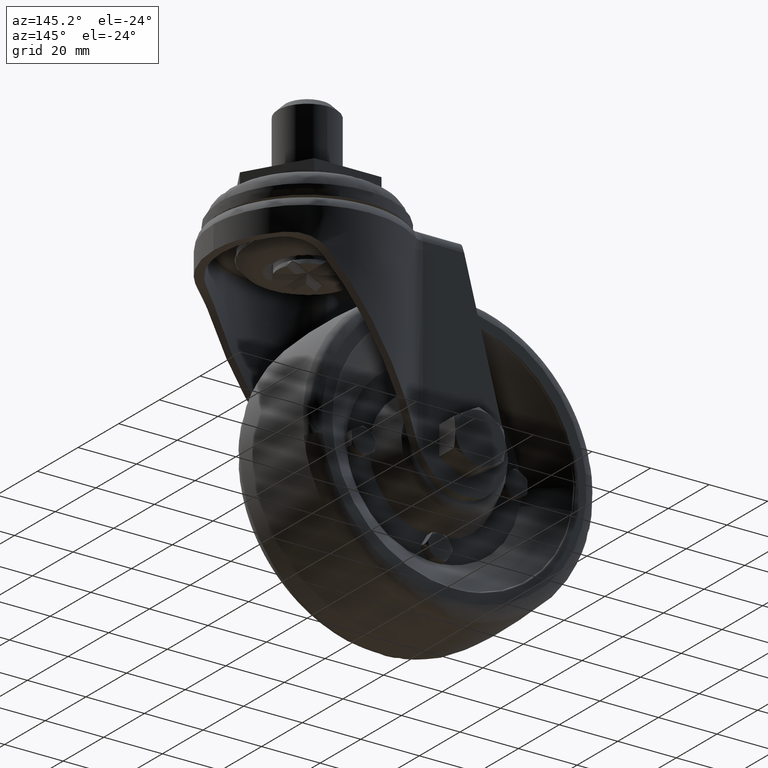
[diagram: clean part render]
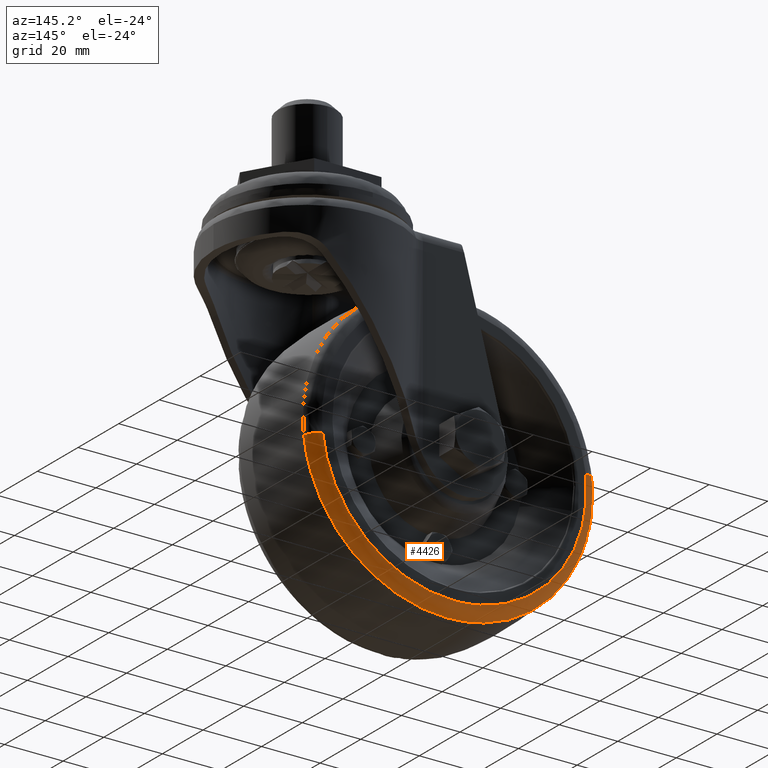
[diagram: same view with one face highlighted and labeled with its STEP entity id]
A machine part, auxiliary view. The second image highlights one B-rep face of the part: STEP entity #4426.
In plain terms, the highlighted face is a freeform B-spline surface patch.
Its self-contained STEP definition (entity closure, byte-faithful):
#4194=CARTESIAN_POINT('',(-81.938464137632096,19.0,-68.395798235338859));
#4195=VERTEX_POINT('',#4194);
#4196=CARTESIAN_POINT('',(-37.0,19.0,-118.727408000000200));
#4197=VERTEX_POINT('',#4196);
#4198=CARTESIAN_POINT('',(-81.938464137632096,18.999999999999993,-68.395798235338859));
#4199=CARTESIAN_POINT('',(-82.227408003267257,18.999999999999993,-70.939720702783248));
#4200=CARTESIAN_POINT('',(-82.227408003172400,19.0,-73.499999999639712));
#4201=CARTESIAN_POINT('',(-82.227408001496514,18.999999999999993,-118.727407999830260));
#4202=CARTESIAN_POINT('',(-37.0,19.0,-118.727408000000200));
#4210=(BOUNDED_CURVE()B_SPLINE_CURVE(2,(#4198,#4199,#4200,#4201,#4202),.UNSPECIFIED.,.F.,.U.)B_SPLINE_CURVE_WITH_KNOTS((3,2,3),(0.730444236555883,0.750000000000000,1.0),.UNSPECIFIED.)CURVE()GEOMETRIC_REPRESENTATION_ITEM()RATIONAL_B_SPLINE_CURVE((0.957762333071963,0.977088997993993,1.0,0.707106781186548,1.0))REPRESENTATION_ITEM(''));
#4211=EDGE_CURVE('',#4195,#4197,#4210,.T.);
#4228=CARTESIAN_POINT('',(7.938464137632105,19.0,-78.604201764661127));
#4229=VERTEX_POINT('',#4228);
#4245=CARTESIAN_POINT('',(-37.0,19.0,-118.727408000000200));
#4246=CARTESIAN_POINT('',(3.381189115497222,18.999999999999993,-118.727408000190580));
#4247=CARTESIAN_POINT('',(7.938464137632105,18.999999999999996,-78.604201764661127));
#4255=(BOUNDED_CURVE()B_SPLINE_CURVE(2,(#4245,#4246,#4247),.UNSPECIFIED.,.F.,.U.)B_SPLINE_CURVE_WITH_KNOTS((3,3),(0.0,0.230444236555884),.UNSPECIFIED.)CURVE()GEOMETRIC_REPRESENTATION_ITEM()RATIONAL_B_SPLINE_CURVE((1.0,0.730017783192555,0.957762333071963))REPRESENTATION_ITEM(''));
#4256=EDGE_CURVE('',#4197,#4229,#4255,.T.);
#4296=CARTESIAN_POINT('',(11.891878821661811,15.410934890007050,-79.053238610616631));
#4297=VERTEX_POINT('',#4296);
#4315=CARTESIAN_POINT('',(7.938464137632105,18.999999999999989,-78.604201764661127));
#4316=CARTESIAN_POINT('',(11.523568169063955,18.999999827242949,-79.011405140887931));
#4317=CARTESIAN_POINT('',(11.891878821661809,15.410934890007047,-79.053238610616646));
#4325=(BOUNDED_CURVE()B_SPLINE_CURVE(2,(#4315,#4316,#4317),.UNSPECIFIED.,.F.,.U.)B_SPLINE_CURVE_WITH_KNOTS((3,3),(-1.720680101244302,-0.281880793322584),.UNSPECIFIED.)CURVE()GEOMETRIC_REPRESENTATION_ITEM()RATIONAL_B_SPLINE_CURVE((0.893261805848611,0.662979489235647,0.892443511112229))REPRESENTATION_ITEM(''));
#4326=EDGE_CURVE('',#4229,#4297,#4325,.T.);
#4330=CARTESIAN_POINT('',(-85.891878821662488,15.410934890000370,-67.946761389383298));
#4331=VERTEX_POINT('',#4330);
#4332=CARTESIAN_POINT('',(-81.938464137632096,18.999999999999996,-68.395798235338845));
#4333=CARTESIAN_POINT('',(-85.523568169070003,18.999999827242952,-67.988594859111373));
#4334=CARTESIAN_POINT('',(-85.891878821662488,15.410934890000375,-67.946761389383298));
#4342=(BOUNDED_CURVE()B_SPLINE_CURVE(2,(#4332,#4333,#4334),.UNSPECIFIED.,.F.,.U.)B_SPLINE_CURVE_WITH_KNOTS((3,3),(-1.720680101244303,-0.281880793320782),.UNSPECIFIED.)CURVE()GEOMETRIC_REPRESENTATION_ITEM()RATIONAL_B_SPLINE_CURVE((0.893261805848612,0.662979489235358,0.892443511112804))REPRESENTATION_ITEM(''));
#4343=EDGE_CURVE('',#4195,#4331,#4342,.T.);
#4361=CARTESIAN_POINT('',(-81.534444308736354,18.991289010974878,-67.176570538242018));
#4362=CARTESIAN_POINT('',(-81.604963410388535,18.991289010974871,-67.797435517107601));
#4363=CARTESIAN_POINT('',(-86.750734313048980,18.991289010974882,-113.101883076366350));
#4364=CARTESIAN_POINT('',(-42.074425618341323,18.991289010974878,-118.176308694707730));
#4365=CARTESIAN_POINT('',(2.601883076366365,18.991289010974882,-123.250734313048990));
#4366=CARTESIAN_POINT('',(7.747653979013493,18.991289010974882,-77.946286753907657));
#4367=CARTESIAN_POINT('',(7.818173080652648,18.991289010974871,-77.325421775156755));
#4368=CARTESIAN_POINT('',(-85.604645755267782,19.262938941850823,-66.598644123266254));
#4369=CARTESIAN_POINT('',(-85.681609912067913,19.262938941850820,-67.276252721016149));
#4370=CARTESIAN_POINT('',(-91.297675762753983,19.262938941850823,-116.721275757351820));
#4371=CARTESIAN_POINT('',(-42.538200002701089,19.262938941850827,-122.259475760052940));
#4372=CARTESIAN_POINT('',(6.221275757351824,19.262938941850823,-127.797675762754000));
#4373=CARTESIAN_POINT('',(11.837341608023378,19.262938941850823,-78.352652726546452));
#4374=CARTESIAN_POINT('',(11.914305764809285,19.262938941850830,-77.675044128921755));
#4375=CARTESIAN_POINT('',(-85.754903237912046,15.147344313831399,-66.577309118252714));
#4376=CARTESIAN_POINT('',(-85.832105323417849,15.147344313831400,-67.257012490288758));
#4377=CARTESIAN_POINT('',(-91.465532804951664,15.147344313831393,-116.854890970281720));
#4378=CARTESIAN_POINT('',(-42.555320917334981,15.147344313831391,-122.410211887616780));
#4379=CARTESIAN_POINT('',(6.354890970281724,15.147344313831393,-127.965532804951690));
#4380=CARTESIAN_POINT('',(11.988318451800977,15.147344313831399,-78.367654325087216));
#4381=CARTESIAN_POINT('',(12.065520537292523,15.147344313831395,-77.687950953176738));
#4389=(BOUNDED_SURFACE()B_SPLINE_SURFACE(2,2,((#4361,#4368,#4375),(#4362,#4369,#4376),(#4363,#4370,#4377),(#4364,#4371,#4378),(#4365,#4372,#4379),(#4366,#4373,#4380),(#4367,#4374,#4381)),.UNSPECIFIED.,.F.,.F.,.U.)B_SPLINE_SURFACE_WITH_KNOTS((3,1,2,1,3),(3,3),(0.0,1.631162841336236,83.189304895052956,164.747446948769690,166.378609789799300),(0.0,6.765960573886892),.UNSPECIFIED.)GEOMETRIC_REPRESENTATION_ITEM()RATIONAL_B_SPLINE_SURFACE(((0.928162259162310,0.646352882280411,0.927251686522364),(0.922788171877030,0.642610479729372,0.921882871479946),(0.648709720370875,0.451747949656410,0.648073304359767),(0.917414084591750,0.638868077178332,0.916514056437529),(0.648709720370875,0.451747949656410,0.648073304359767),(0.922788171876020,0.642610479728668,0.921882871478937),(0.928162259160290,0.646352882279004,0.927251686520345)))REPRESENTATION_ITEM('')SURFACE());
#4390=CARTESIAN_POINT('',(-37.0,15.410934763958540,-122.706243467558810));
#4391=VERTEX_POINT('',#4390);
#4392=CARTESIAN_POINT('',(-37.0,15.410934763958540,-122.706243467558810));
#4393=CARTESIAN_POINT('',(6.933682007419955,15.410934826995927,-122.706243536273530));
#4394=CARTESIAN_POINT('',(11.891878821661811,15.410934890007050,-79.053238610616631));
#4402=(BOUNDED_CURVE()B_SPLINE_CURVE(2,(#4392,#4393,#4394),.UNSPECIFIED.,.F.,.U.)B_SPLINE_CURVE_WITH_KNOTS((3,3),(0.0,0.230444237518526),.UNSPECIFIED.)CURVE()GEOMETRIC_REPRESENTATION_ITEM()RATIONAL_B_SPLINE_CURVE((1.0,0.730017782064749,0.957762334974693))REPRESENTATION_ITEM(''));
#4403=EDGE_CURVE('',#4391,#4297,#4402,.T.);
#4404=ORIENTED_EDGE('',*,*,#4403,.F.);
#4405=CARTESIAN_POINT('',(-85.891878821662488,15.410934890000370,-67.946761389383298));
#4406=CARTESIAN_POINT('',(-86.206242153597188,15.410934886815923,-70.714482728324384));
#4407=CARTESIAN_POINT('',(-86.206242119349909,15.410934883249110,-73.499999869930363));
#4408=CARTESIAN_POINT('',(-86.206241514370518,15.410934820241327,-122.706243406206950));
#4409=CARTESIAN_POINT('',(-37.0,15.410934763958540,-122.706243467558810));
#4417=(BOUNDED_CURVE()B_SPLINE_CURVE(2,(#4405,#4406,#4407,#4408,#4409),.UNSPECIFIED.,.F.,.U.)B_SPLINE_CURVE_WITH_KNOTS((3,2,3),(0.730444237518547,0.750000000000000,1.0),.UNSPECIFIED.)CURVE()GEOMETRIC_REPRESENTATION_ITEM()RATIONAL_B_SPLINE_CURVE((0.957762334974735,0.977088999121823,1.0,0.707106781186548,1.0))REPRESENTATION_ITEM(''));
#4418=EDGE_CURVE('',#4331,#4391,#4417,.T.);
#4419=ORIENTED_EDGE('',*,*,#4418,.F.);
#4420=ORIENTED_EDGE('',*,*,#4343,.F.);
#4421=ORIENTED_EDGE('',*,*,#4211,.T.);
#4422=ORIENTED_EDGE('',*,*,#4256,.T.);
#4423=ORIENTED_EDGE('',*,*,#4326,.T.);
#4424=EDGE_LOOP('',(#4404,#4419,#4420,#4421,#4422,#4423));
#4425=FACE_OUTER_BOUND('',#4424,.T.);
#4426=ADVANCED_FACE('',(#4425),#4389,.T.);